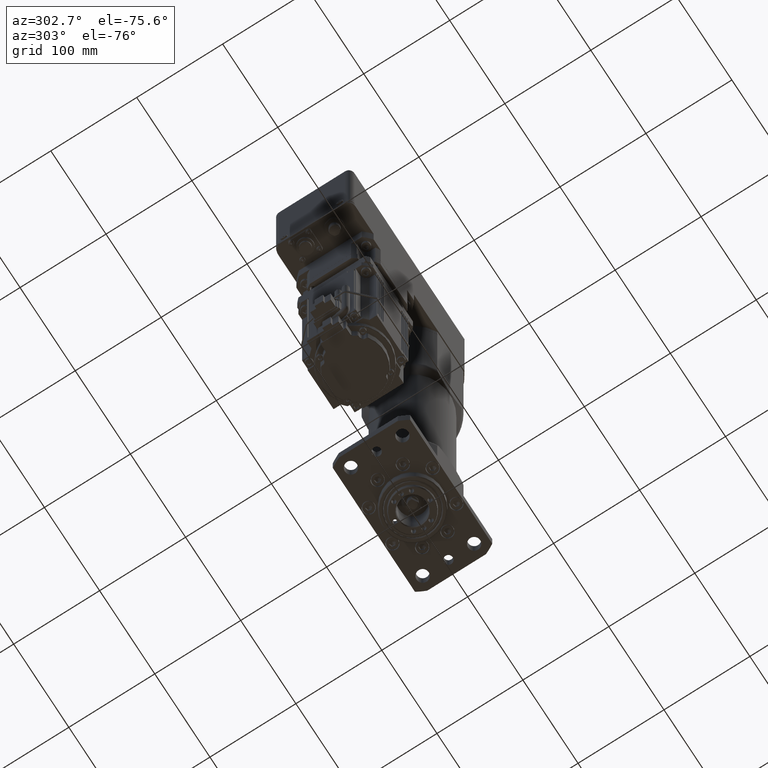
[diagram: clean part render]
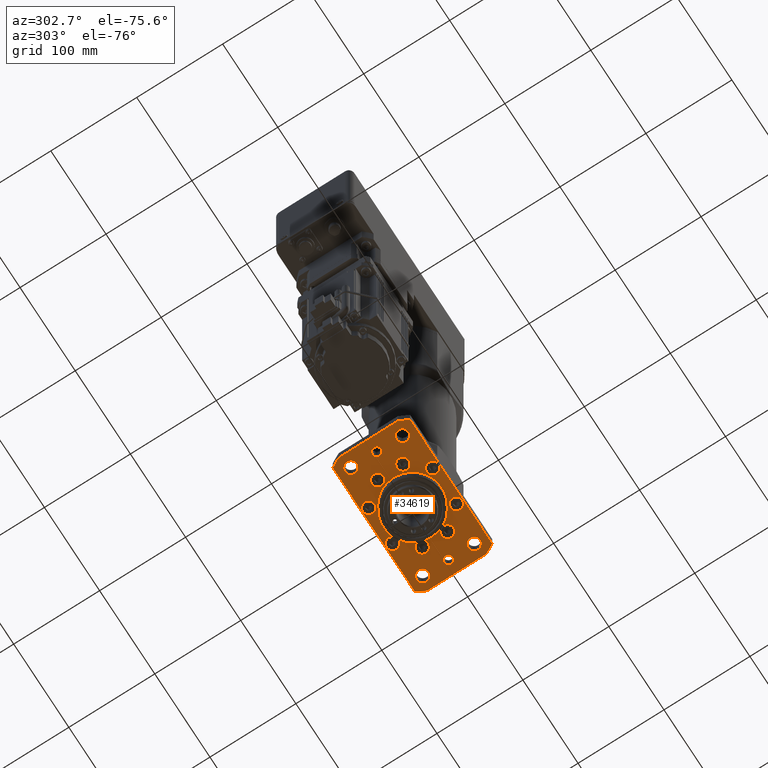
[diagram: same view with one face highlighted and labeled with its STEP entity id]
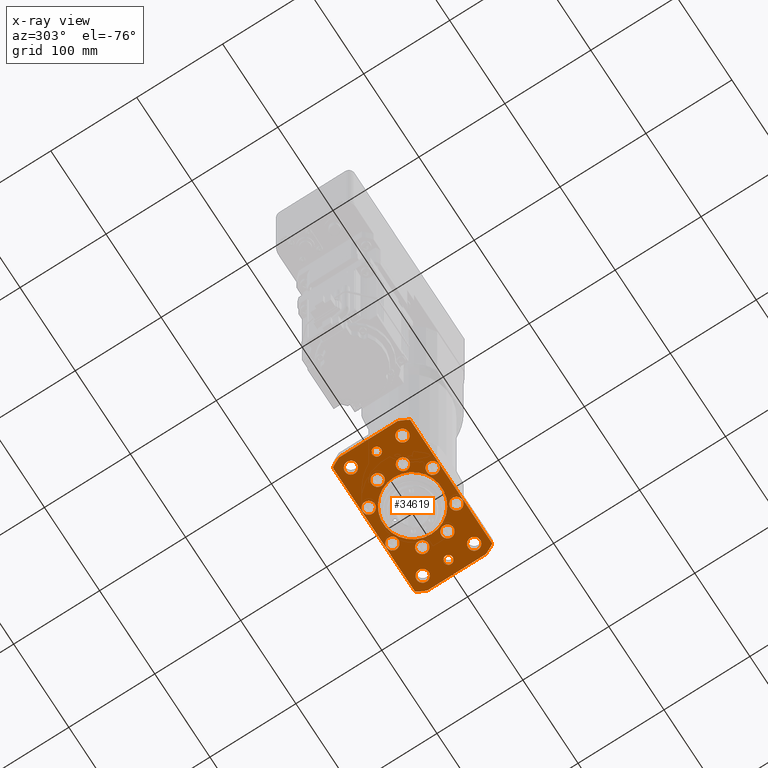
[diagram: x-ray of the same camera — body ghosted, the highlighted face saturated]
A machine part, auxiliary view. The second image highlights one B-rep face of the part: STEP entity #34619.
The next image is the same camera in x-ray: the body ghosted, the highlighted face saturated — about 0% of this face is hidden behind the body in this view.
In plain terms, the highlighted planar face has unit normal (-0, 0, 1).
Its self-contained STEP definition (entity closure, byte-faithful):
#527=FACE_BOUND('',#4947,.T.);
#528=FACE_BOUND('',#4948,.T.);
#529=FACE_BOUND('',#4949,.T.);
#530=FACE_BOUND('',#4950,.T.);
#531=FACE_BOUND('',#4951,.T.);
#532=FACE_BOUND('',#4952,.T.);
#533=FACE_BOUND('',#4953,.T.);
#534=FACE_BOUND('',#4954,.T.);
#535=FACE_BOUND('',#4955,.T.);
#536=FACE_BOUND('',#4956,.T.);
#537=FACE_BOUND('',#4957,.T.);
#538=FACE_BOUND('',#4958,.T.);
#539=FACE_BOUND('',#4959,.T.);
#540=FACE_BOUND('',#4960,.T.);
#541=FACE_BOUND('',#4961,.T.);
#1291=PLANE('',#37442);
#3048=FACE_OUTER_BOUND('',#4946,.T.);
#4946=EDGE_LOOP('',(#27273,#27274,#27275,#27276,#27277,#27278,#27279,#27280));
#4947=EDGE_LOOP('',(#27281,#27282));
#4948=EDGE_LOOP('',(#27283,#27284));
#4949=EDGE_LOOP('',(#27285,#27286));
#4950=EDGE_LOOP('',(#27287,#27288));
#4951=EDGE_LOOP('',(#27289,#27290));
#4952=EDGE_LOOP('',(#27291,#27292));
#4953=EDGE_LOOP('',(#27293,#27294));
#4954=EDGE_LOOP('',(#27295,#27296));
#4955=EDGE_LOOP('',(#27297));
#4956=EDGE_LOOP('',(#27298));
#4957=EDGE_LOOP('',(#27299));
#4958=EDGE_LOOP('',(#27300));
#4959=EDGE_LOOP('',(#27301));
#4960=EDGE_LOOP('',(#27302));
#4961=EDGE_LOOP('',(#27303));
#6712=CIRCLE('',#37353,34.);
#6713=CIRCLE('',#37355,7.);
#6714=CIRCLE('',#37356,7.);
#6717=CIRCLE('',#37361,7.);
#6718=CIRCLE('',#37362,7.);
#6721=CIRCLE('',#37367,7.);
#6722=CIRCLE('',#37368,7.);
#6725=CIRCLE('',#37373,7.);
#6726=CIRCLE('',#37374,7.);
#6729=CIRCLE('',#37379,7.);
#6730=CIRCLE('',#37380,7.);
#6733=CIRCLE('',#37385,7.);
#6734=CIRCLE('',#37386,7.);
#6737=CIRCLE('',#37391,7.);
#6738=CIRCLE('',#37392,7.);
#6741=CIRCLE('',#37397,7.);
#6742=CIRCLE('',#37398,7.);
#6747=CIRCLE('',#37405,5.);
#6750=CIRCLE('',#37409,5.);
#6753=CIRCLE('',#37413,7.);
#6756=CIRCLE('',#37417,7.);
#6759=CIRCLE('',#37421,7.);
#6762=CIRCLE('',#37425,7.);
#6763=CIRCLE('',#37427,87.);
#6765=CIRCLE('',#37431,87.);
#6767=CIRCLE('',#37435,87.);
#6769=CIRCLE('',#37439,87.);
#9533=LINE('',#56632,#12229);
#9537=LINE('',#56644,#12233);
#9541=LINE('',#56656,#12237);
#9545=LINE('',#56667,#12241);
#12229=VECTOR('',#44949,10.);
#12233=VECTOR('',#44961,10.);
#12237=VECTOR('',#44973,10.);
#12241=VECTOR('',#44985,10.);
#15076=VERTEX_POINT('',#56482);
#15077=VERTEX_POINT('',#56486);
#15078=VERTEX_POINT('',#56487);
#15081=VERTEX_POINT('',#56497);
#15082=VERTEX_POINT('',#56498);
#15085=VERTEX_POINT('',#56508);
#15086=VERTEX_POINT('',#56509);
#15089=VERTEX_POINT('',#56519);
#15090=VERTEX_POINT('',#56520);
#15093=VERTEX_POINT('',#56530);
#15094=VERTEX_POINT('',#56531);
#15097=VERTEX_POINT('',#56541);
#15098=VERTEX_POINT('',#56542);
#15101=VERTEX_POINT('',#56552);
#15102=VERTEX_POINT('',#56553);
#15105=VERTEX_POINT('',#56563);
#15106=VERTEX_POINT('',#56564);
#15111=VERTEX_POINT('',#56578);
#15114=VERTEX_POINT('',#56586);
#15117=VERTEX_POINT('',#56594);
#15120=VERTEX_POINT('',#56602);
#15123=VERTEX_POINT('',#56610);
#15126=VERTEX_POINT('',#56618);
#15127=VERTEX_POINT('',#56622);
#15128=VERTEX_POINT('',#56623);
#15131=VERTEX_POINT('',#56631);
#15133=VERTEX_POINT('',#56637);
#15135=VERTEX_POINT('',#56643);
#15137=VERTEX_POINT('',#56649);
#15139=VERTEX_POINT('',#56655);
#15141=VERTEX_POINT('',#56661);
#19379=EDGE_CURVE('',#15076,#15076,#6712,.T.);
#19380=EDGE_CURVE('',#15077,#15078,#6713,.T.);
#19381=EDGE_CURVE('',#15078,#15077,#6714,.T.);
#19385=EDGE_CURVE('',#15081,#15082,#6717,.T.);
#19386=EDGE_CURVE('',#15082,#15081,#6718,.T.);
#19390=EDGE_CURVE('',#15085,#15086,#6721,.T.);
#19391=EDGE_CURVE('',#15086,#15085,#6722,.T.);
#19395=EDGE_CURVE('',#15089,#15090,#6725,.T.);
#19396=EDGE_CURVE('',#15090,#15089,#6726,.T.);
#19400=EDGE_CURVE('',#15093,#15094,#6729,.T.);
#19401=EDGE_CURVE('',#15094,#15093,#6730,.T.);
#19405=EDGE_CURVE('',#15097,#15098,#6733,.T.);
#19406=EDGE_CURVE('',#15098,#15097,#6734,.T.);
#19410=EDGE_CURVE('',#15101,#15102,#6737,.T.);
#19411=EDGE_CURVE('',#15102,#15101,#6738,.T.);
#19415=EDGE_CURVE('',#15105,#15106,#6741,.T.);
#19416=EDGE_CURVE('',#15106,#15105,#6742,.T.);
#19423=EDGE_CURVE('',#15111,#15111,#6747,.T.);
#19427=EDGE_CURVE('',#15114,#15114,#6750,.T.);
#19431=EDGE_CURVE('',#15117,#15117,#6753,.T.);
#19435=EDGE_CURVE('',#15120,#15120,#6756,.T.);
#19439=EDGE_CURVE('',#15123,#15123,#6759,.T.);
#19443=EDGE_CURVE('',#15126,#15126,#6762,.T.);
#19444=EDGE_CURVE('',#15127,#15128,#6763,.T.);
#19448=EDGE_CURVE('',#15131,#15127,#9533,.T.);
#19451=EDGE_CURVE('',#15133,#15131,#6765,.T.);
#19454=EDGE_CURVE('',#15135,#15133,#9537,.T.);
#19457=EDGE_CURVE('',#15137,#15135,#6767,.T.);
#19460=EDGE_CURVE('',#15139,#15137,#9541,.T.);
#19463=EDGE_CURVE('',#15141,#15139,#6769,.T.);
#19466=EDGE_CURVE('',#15128,#15141,#9545,.T.);
#27273=ORIENTED_EDGE('',*,*,#19466,.F.);
#27274=ORIENTED_EDGE('',*,*,#19444,.F.);
#27275=ORIENTED_EDGE('',*,*,#19448,.F.);
#27276=ORIENTED_EDGE('',*,*,#19451,.F.);
#27277=ORIENTED_EDGE('',*,*,#19454,.F.);
#27278=ORIENTED_EDGE('',*,*,#19457,.F.);
#27279=ORIENTED_EDGE('',*,*,#19460,.F.);
#27280=ORIENTED_EDGE('',*,*,#19463,.F.);
#27281=ORIENTED_EDGE('',*,*,#19380,.T.);
#27282=ORIENTED_EDGE('',*,*,#19381,.T.);
#27283=ORIENTED_EDGE('',*,*,#19385,.T.);
#27284=ORIENTED_EDGE('',*,*,#19386,.T.);
#27285=ORIENTED_EDGE('',*,*,#19390,.T.);
#27286=ORIENTED_EDGE('',*,*,#19391,.T.);
#27287=ORIENTED_EDGE('',*,*,#19395,.T.);
#27288=ORIENTED_EDGE('',*,*,#19396,.T.);
#27289=ORIENTED_EDGE('',*,*,#19400,.T.);
#27290=ORIENTED_EDGE('',*,*,#19401,.T.);
#27291=ORIENTED_EDGE('',*,*,#19405,.T.);
#27292=ORIENTED_EDGE('',*,*,#19406,.T.);
#27293=ORIENTED_EDGE('',*,*,#19410,.T.);
#27294=ORIENTED_EDGE('',*,*,#19411,.T.);
#27295=ORIENTED_EDGE('',*,*,#19415,.T.);
#27296=ORIENTED_EDGE('',*,*,#19416,.T.);
#27297=ORIENTED_EDGE('',*,*,#19423,.T.);
#27298=ORIENTED_EDGE('',*,*,#19427,.T.);
#27299=ORIENTED_EDGE('',*,*,#19431,.T.);
#27300=ORIENTED_EDGE('',*,*,#19435,.T.);
#27301=ORIENTED_EDGE('',*,*,#19439,.T.);
#27302=ORIENTED_EDGE('',*,*,#19443,.T.);
#27303=ORIENTED_EDGE('',*,*,#19379,.T.);
#34619=ADVANCED_FACE('',(#3048,#527,#528,#529,#530,#531,#532,#533,#534,
#535,#536,#537,#538,#539,#540,#541),#1291,.F.);
#37353=AXIS2_PLACEMENT_3D('',#56484,#44779,#44780);
#37355=AXIS2_PLACEMENT_3D('',#56488,#44783,#44784);
#37356=AXIS2_PLACEMENT_3D('',#56489,#44785,#44786);
#37361=AXIS2_PLACEMENT_3D('',#56499,#44796,#44797);
#37362=AXIS2_PLACEMENT_3D('',#56500,#44798,#44799);
#37367=AXIS2_PLACEMENT_3D('',#56510,#44809,#44810);
#37368=AXIS2_PLACEMENT_3D('',#56511,#44811,#44812);
#37373=AXIS2_PLACEMENT_3D('',#56521,#44822,#44823);
#37374=AXIS2_PLACEMENT_3D('',#56522,#44824,#44825);
#37379=AXIS2_PLACEMENT_3D('',#56532,#44835,#44836);
#37380=AXIS2_PLACEMENT_3D('',#56533,#44837,#44838);
#37385=AXIS2_PLACEMENT_3D('',#56543,#44848,#44849);
#37386=AXIS2_PLACEMENT_3D('',#56544,#44850,#44851);
#37391=AXIS2_PLACEMENT_3D('',#56554,#44861,#44862);
#37392=AXIS2_PLACEMENT_3D('',#56555,#44863,#44864);
#37397=AXIS2_PLACEMENT_3D('',#56565,#44874,#44875);
#37398=AXIS2_PLACEMENT_3D('',#56566,#44876,#44877);
#37405=AXIS2_PLACEMENT_3D('',#56580,#44892,#44893);
#37409=AXIS2_PLACEMENT_3D('',#56588,#44901,#44902);
#37413=AXIS2_PLACEMENT_3D('',#56596,#44910,#44911);
#37417=AXIS2_PLACEMENT_3D('',#56604,#44919,#44920);
#37421=AXIS2_PLACEMENT_3D('',#56612,#44928,#44929);
#37425=AXIS2_PLACEMENT_3D('',#56620,#44937,#44938);
#37427=AXIS2_PLACEMENT_3D('',#56624,#44941,#44942);
#37431=AXIS2_PLACEMENT_3D('',#56638,#44954,#44955);
#37435=AXIS2_PLACEMENT_3D('',#56650,#44966,#44967);
#37439=AXIS2_PLACEMENT_3D('',#56662,#44978,#44979);
#37442=AXIS2_PLACEMENT_3D('',#56669,#44987,#44988);
#44779=DIRECTION('center_axis',(-1.66741034889409E-13,7.79443320540944E-15,
1.));
#44780=DIRECTION('ref_axis',(-1.,1.96876250009033E-13,-1.66741034889411E-13));
#44783=DIRECTION('center_axis',(-1.66741034889409E-13,7.79443320540944E-15,
1.));
#44784=DIRECTION('ref_axis',(-1.,1.96876250009033E-13,-1.6674103488941E-13));
#44785=DIRECTION('center_axis',(-1.66741034889409E-13,7.79443320540944E-15,
1.));
#44786=DIRECTION('ref_axis',(-1.,1.96876250009033E-13,-1.6674103488941E-13));
#44796=DIRECTION('center_axis',(-1.66741034889409E-13,7.79443320540944E-15,
1.));
#44797=DIRECTION('ref_axis',(-1.,1.96876250009033E-13,-1.6674103488941E-13));
#44798=DIRECTION('center_axis',(-1.66741034889409E-13,7.79443320540944E-15,
1.));
#44799=DIRECTION('ref_axis',(-1.,1.96876250009033E-13,-1.6674103488941E-13));
#44809=DIRECTION('center_axis',(-1.66741034889409E-13,7.79443320540944E-15,
1.));
#44810=DIRECTION('ref_axis',(-1.,1.96876250009033E-13,-1.6674103488941E-13));
#44811=DIRECTION('center_axis',(-1.66741034889409E-13,7.79443320540944E-15,
1.));
#44812=DIRECTION('ref_axis',(-1.,1.96876250009033E-13,-1.6674103488941E-13));
#44822=DIRECTION('center_axis',(-1.66741034889409E-13,7.79443320540944E-15,
1.));
#44823=DIRECTION('ref_axis',(-1.,1.96876250009033E-13,-1.6674103488941E-13));
#44824=DIRECTION('center_axis',(-1.66741034889409E-13,7.79443320540944E-15,
1.));
#44825=DIRECTION('ref_axis',(-1.,1.96876250009033E-13,-1.6674103488941E-13));
#44835=DIRECTION('center_axis',(-1.66741034889409E-13,7.79443320540944E-15,
1.));
#44836=DIRECTION('ref_axis',(1.,-1.96876250009033E-13,1.6674103488941E-13));
#44837=DIRECTION('center_axis',(-1.66741034889409E-13,7.79443320540944E-15,
1.));
#44838=DIRECTION('ref_axis',(1.,-1.96876250009033E-13,1.6674103488941E-13));
#44848=DIRECTION('center_axis',(-1.66741034889409E-13,7.79443320540944E-15,
1.));
#44849=DIRECTION('ref_axis',(1.,-1.96876250009033E-13,1.6674103488941E-13));
#44850=DIRECTION('center_axis',(-1.66741034889409E-13,7.79443320540944E-15,
1.));
#44851=DIRECTION('ref_axis',(1.,-1.96876250009033E-13,1.6674103488941E-13));
#44861=DIRECTION('center_axis',(-1.66741034889409E-13,7.79443320540944E-15,
1.));
#44862=DIRECTION('ref_axis',(1.,-1.96876250009033E-13,1.6674103488941E-13));
#44863=DIRECTION('center_axis',(-1.66741034889409E-13,7.79443320540944E-15,
1.));
#44864=DIRECTION('ref_axis',(1.,-1.96876250009033E-13,1.6674103488941E-13));
#44874=DIRECTION('center_axis',(-1.66741034889409E-13,7.79443320540944E-15,
1.));
#44875=DIRECTION('ref_axis',(1.,-1.96876250009033E-13,1.6674103488941E-13));
#44876=DIRECTION('center_axis',(-1.66741034889409E-13,7.79443320540944E-15,
1.));
#44877=DIRECTION('ref_axis',(1.,-1.96876250009033E-13,1.6674103488941E-13));
#44892=DIRECTION('center_axis',(-1.66741034889409E-13,7.79443320540944E-15,
1.));
#44893=DIRECTION('ref_axis',(1.,-1.96876250009033E-13,1.66741034889411E-13));
#44901=DIRECTION('center_axis',(-1.66741034889409E-13,7.79443320540944E-15,
1.));
#44902=DIRECTION('ref_axis',(-1.,1.96876250009033E-13,-1.66741034889411E-13));
#44910=DIRECTION('center_axis',(-1.66741034889409E-13,7.79443320540944E-15,
1.));
#44911=DIRECTION('ref_axis',(-1.,1.96876250009033E-13,-1.6674103488941E-13));
#44919=DIRECTION('center_axis',(-1.66741034889409E-13,7.79443320540944E-15,
1.));
#44920=DIRECTION('ref_axis',(-1.,1.96876250009033E-13,-1.6674103488941E-13));
#44928=DIRECTION('center_axis',(-1.66741034889409E-13,7.79443320540944E-15,
1.));
#44929=DIRECTION('ref_axis',(-1.,1.96876250009033E-13,-1.6674103488941E-13));
#44937=DIRECTION('center_axis',(-1.66741034889409E-13,7.79443320540944E-15,
1.));
#44938=DIRECTION('ref_axis',(-1.,1.96876250009033E-13,-1.6674103488941E-13));
#44941=DIRECTION('center_axis',(-1.66741034889409E-13,7.79443320540944E-15,
1.));
#44942=DIRECTION('ref_axis',(0.855839561792371,-0.517241379310513,1.46735177614668E-13));
#44949=DIRECTION('',(1.,-1.96818747116409E-13,1.66741034889411E-13));
#44954=DIRECTION('center_axis',(-1.66741034889409E-13,7.79443320540944E-15,
1.));
#44955=DIRECTION('ref_axis',(-0.919540229885135,-0.392995884994733,-1.502619093779E-13));
#44961=DIRECTION('',(-1.96876250009035E-13,-1.,7.79443320537661E-15));
#44966=DIRECTION('center_axis',(-1.66741034889409E-13,7.79443320540944E-15,
1.));
#44967=DIRECTION('ref_axis',(-0.855839561792371,0.517241379310513,-1.46735177614668E-13));
#44973=DIRECTION('',(-1.,1.96876250009033E-13,-1.66741034889411E-13));
#44978=DIRECTION('center_axis',(-1.66741034889409E-13,7.79443320540944E-15,
1.));
#44979=DIRECTION('ref_axis',(0.919540229885135,0.392995884994733,1.502619093779E-13));
#44985=DIRECTION('',(1.96876250009035E-13,1.,-7.79443320537661E-15));
#44987=DIRECTION('center_axis',(-1.66741034889409E-13,7.79443320540944E-15,
1.));
#44988=DIRECTION('ref_axis',(-1.,1.96876250009033E-13,-1.66741034889411E-13));
#56482=CARTESIAN_POINT('',(34.0000000001051,-3.34273433078414E-11,-17.999999999939));
#56484=CARTESIAN_POINT('Origin',(1.05064489372446E-10,-2.67293870084171E-11,
-17.9999999999447));
#56486=CARTESIAN_POINT('',(33.406782693902,14.7068661629705,-17.9999999999392));
#56487=CARTESIAN_POINT('',(47.406782693902,14.7068661629677,-17.9999999999369));
#56488=CARTESIAN_POINT('Origin',(40.406782693902,14.7068661629691,-17.9999999999381));
#56489=CARTESIAN_POINT('Origin',(40.406782693902,14.7068661629691,-17.9999999999381));
#56497=CARTESIAN_POINT('',(14.5000000000977,-37.2390923627605,-17.999999999942));
#56498=CARTESIAN_POINT('',(28.5000000000977,-37.2390923627632,-17.9999999999397));
#56499=CARTESIAN_POINT('Origin',(21.5000000000977,-37.2390923627618,-17.9999999999408));
#56500=CARTESIAN_POINT('Origin',(21.5000000000977,-37.2390923627618,-17.9999999999408));
#56508=CARTESIAN_POINT('',(33.4067826938962,-14.7068661630371,-17.999999999939));
#56509=CARTESIAN_POINT('',(47.4067826938962,-14.7068661630398,-17.9999999999367));
#56510=CARTESIAN_POINT('Origin',(40.4067826938962,-14.7068661630384,-17.9999999999378));
#56511=CARTESIAN_POINT('Origin',(40.4067826938962,-14.7068661630384,-17.9999999999378));
#56519=CARTESIAN_POINT('',(14.5000000001124,37.2390923627013,-17.9999999999426));
#56520=CARTESIAN_POINT('',(28.5000000001124,37.2390923626985,-17.9999999999402));
#56521=CARTESIAN_POINT('Origin',(21.5000000001124,37.2390923626999,-17.9999999999414));
#56522=CARTESIAN_POINT('Origin',(21.5000000001124,37.2390923626999,-17.9999999999414));
#56530=CARTESIAN_POINT('',(-33.4067826936861,14.7068661629836,-17.9999999999504));
#56531=CARTESIAN_POINT('',(-47.4067826936861,14.7068661629864,-17.9999999999527));
#56532=CARTESIAN_POINT('Origin',(-40.4067826936861,14.706866162985,-17.9999999999516));
#56533=CARTESIAN_POINT('Origin',(-40.4067826936861,14.706866162985,-17.9999999999516));
#56541=CARTESIAN_POINT('',(-14.4999999999022,-37.2390923627547,-17.9999999999468));
#56542=CARTESIAN_POINT('',(-28.4999999999023,-37.239092362752,-17.9999999999492));
#56543=CARTESIAN_POINT('Origin',(-21.4999999999023,-37.2390923627534,-17.999999999948));
#56544=CARTESIAN_POINT('Origin',(-21.4999999999023,-37.2390923627534,-17.999999999948));
#56552=CARTESIAN_POINT('',(-33.4067826936919,-14.7068661630239,-17.9999999999502));
#56553=CARTESIAN_POINT('',(-47.4067826936919,-14.7068661630212,-17.9999999999525));
#56554=CARTESIAN_POINT('Origin',(-40.4067826936919,-14.7068661630225,-17.9999999999513));
#56555=CARTESIAN_POINT('Origin',(-40.4067826936919,-14.7068661630225,-17.9999999999513));
#56563=CARTESIAN_POINT('',(-14.4999999998876,37.239092362707,-17.9999999999474));
#56564=CARTESIAN_POINT('',(-28.4999999998876,37.2390923627098,-17.9999999999497));
#56565=CARTESIAN_POINT('Origin',(-21.4999999998876,37.2390923627084,-17.9999999999486));
#56566=CARTESIAN_POINT('Origin',(-21.4999999998876,37.2390923627084,-17.9999999999486));
#56578=CARTESIAN_POINT('',(-69.9999999998949,-1.29457402664275E-11,-17.9999999999564));
#56580=CARTESIAN_POINT('Origin',(-64.9999999998949,-1.39307338398722E-11,
-17.9999999999555));
#56586=CARTESIAN_POINT('',(70.0000000001051,-4.05084152676922E-11,-17.999999999933));
#56588=CARTESIAN_POINT('Origin',(65.0000000001051,-3.95246463410466E-11,
-17.9999999999339));
#56594=CARTESIAN_POINT('',(-57.9999999999008,-30.0000000000153,-17.9999999999541));
#56596=CARTESIAN_POINT('Origin',(-64.9999999999008,-30.0000000000139,-17.9999999999553));
#56602=CARTESIAN_POINT('',(72.000000000111,29.9999999999591,-17.9999999999329));
#56604=CARTESIAN_POINT('Origin',(65.000000000111,29.9999999999605,-17.9999999999341));
#56610=CARTESIAN_POINT('',(-57.999999999889,29.9999999999847,-17.9999999999546));
#56612=CARTESIAN_POINT('Origin',(-64.999999999889,29.9999999999861,-17.9999999999558));
#56618=CARTESIAN_POINT('',(72.0000000000992,-30.0000000000409,-17.9999999999325));
#56620=CARTESIAN_POINT('Origin',(65.0000000000992,-30.0000000000395,-17.9999999999336));
#56622=CARTESIAN_POINT('',(74.4580418760414,-45.0000000000414,-17.9999999999319));
#56623=CARTESIAN_POINT('',(80.0000000000983,-34.1906419946,-17.9999999999311));
#56624=CARTESIAN_POINT('Origin',(1.05064489372446E-10,-2.67293870084171E-11,
-17.9999999999447));
#56631=CARTESIAN_POINT('',(-74.4580418758489,-45.0000000000121,-17.9999999999568));
#56632=CARTESIAN_POINT('',(-79.9999999999038,-45.000000000011,-17.9999999999577));
#56637=CARTESIAN_POINT('',(-79.9999999999017,-34.1906419945685,-17.9999999999578));
#56638=CARTESIAN_POINT('Origin',(1.05064489372446E-10,-2.67293870084171E-11,
-17.9999999999447));
#56643=CARTESIAN_POINT('',(-79.9999999998882,34.1906419945466,-17.9999999999583));
#56644=CARTESIAN_POINT('',(-79.9999999998861,44.999999999989,-17.9999999999584));
#56649=CARTESIAN_POINT('',(-74.4580418758312,44.9999999999879,-17.9999999999575));
#56650=CARTESIAN_POINT('Origin',(1.05064489372446E-10,-2.67293870084171E-11,
-17.9999999999447));
#56655=CARTESIAN_POINT('',(74.4580418760591,44.9999999999586,-17.9999999999326));
#56656=CARTESIAN_POINT('',(74.4580418760591,44.9999999999586,-17.9999999999326));
#56661=CARTESIAN_POINT('',(80.0000000001118,34.1906419945151,-17.9999999999316));
#56662=CARTESIAN_POINT('Origin',(1.05064489372446E-10,-2.67293870084171E-11,
-17.9999999999447));
#56667=CARTESIAN_POINT('',(80.0000000000983,-34.1906419946,-17.9999999999311));
#56669=CARTESIAN_POINT('Origin',(1.05073256781894E-10,-2.67276900904594E-11,
-17.9999999999447));